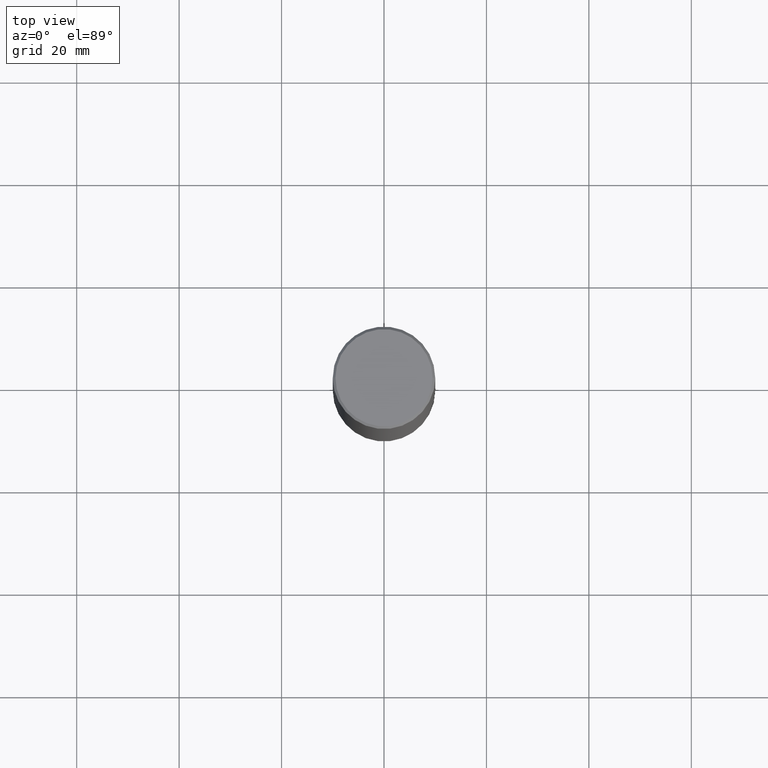
[diagram: clean part render]
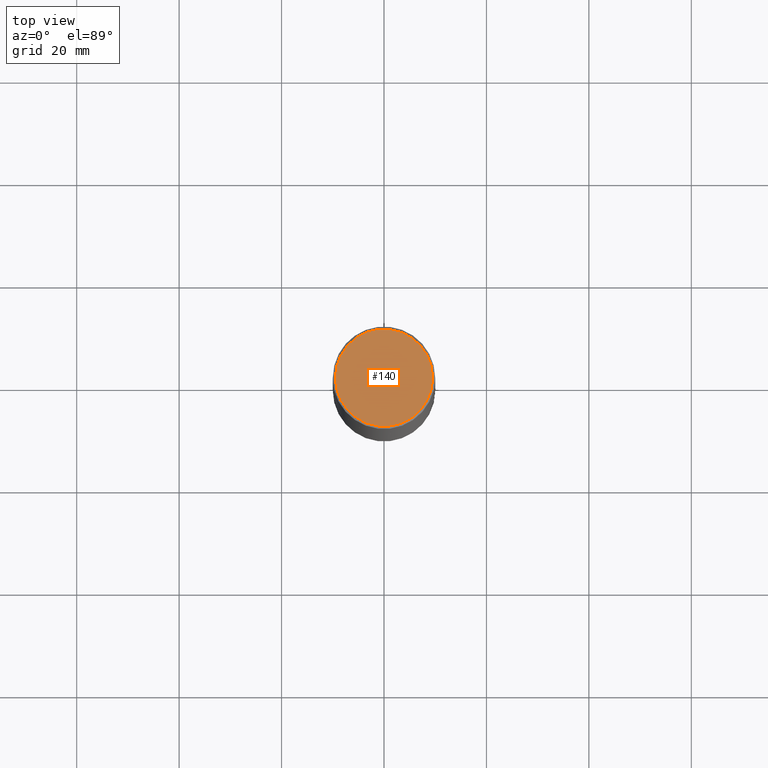
[diagram: same view with one face highlighted and labeled with its STEP entity id]
A machine part, top view. The second image highlights one B-rep face of the part: STEP entity #140.
In plain terms, the highlighted planar face has unit normal (0, -0, -1).
Its self-contained STEP definition (entity closure, byte-faithful):
#37 = DIRECTION ( 'NONE',  ( 1.000000000000000000, -6.982962677686266711E-15, 4.876212485538977921E-29 ) ) ;
#43 = CARTESIAN_POINT ( 'NONE',  ( -2.087702828670439639E-46, 2.980686340760894400E-32, 8.537024980200822558E-18 ) ) ;
#72 = VERTEX_POINT ( 'NONE', #80 ) ;
#80 = CARTESIAN_POINT ( 'NONE',  ( -0.3736999999999998101, 2.644447966039787875E-15, 8.537024980182450727E-18 ) ) ;
#102 = CIRCLE ( 'NONE', #159, 0.3736999999999998101 ) ;
#103 = DIRECTION ( 'NONE',  ( 1.000000000000000000, -6.982962677686266711E-15, 4.876212485538977921E-29 ) ) ;
#105 = CIRCLE ( 'NONE', #257, 0.3736999999999998101 ) ;
#140 = ADVANCED_FACE ( 'NONE', ( #290 ), #157, .F. ) ;
#149 = EDGE_CURVE ( 'NONE', #72, #274, #102, .T. ) ;
#157 = PLANE ( 'NONE',  #362 ) ;
#159 = AXIS2_PLACEMENT_3D ( 'NONE', #315, #346, #37 ) ;
#195 = ORIENTED_EDGE ( 'NONE', *, *, #331, .T. ) ;
#223 = CARTESIAN_POINT ( 'NONE',  ( 0.3736999999999998101, -2.667287895133366781E-15, 8.537024980219274507E-18 ) ) ;
#234 = EDGE_LOOP ( 'NONE', ( #266, #195 ) ) ;
#240 = DIRECTION ( 'NONE',  ( 2.438088387897960049E-29, -3.491481338843145188E-15, -1.000000000000000000 ) ) ;
#257 = AXIS2_PLACEMENT_3D ( 'NONE', #43, #356, #103 ) ;
#265 = DIRECTION ( 'NONE',  ( -1.000000000000000000, 6.982962677686265922E-15, -4.876176775795935793E-29 ) ) ;
#266 = ORIENTED_EDGE ( 'NONE', *, *, #149, .T. ) ;
#274 = VERTEX_POINT ( 'NONE', #223 ) ;
#290 = FACE_OUTER_BOUND ( 'NONE', #234, .T. ) ;
#315 = CARTESIAN_POINT ( 'NONE',  ( -2.087702828670439639E-46, 2.980686340760894400E-32, 8.537024980200822558E-18 ) ) ;
#321 = CARTESIAN_POINT ( 'NONE',  ( 2.609533152651356226E-15, 0.3736999999999998101, -1.300498063835582617E-15 ) ) ;
#331 = EDGE_CURVE ( 'NONE', #274, #72, #105, .T. ) ;
#346 = DIRECTION ( 'NONE',  ( -2.445468806185136597E-29, 3.491481338843145583E-15, 1.000000000000000000 ) ) ;
#356 = DIRECTION ( 'NONE',  ( -2.445468806185136597E-29, 3.491481338843145583E-15, 1.000000000000000000 ) ) ;
#362 = AXIS2_PLACEMENT_3D ( 'NONE', #321, #240, #265 ) ;